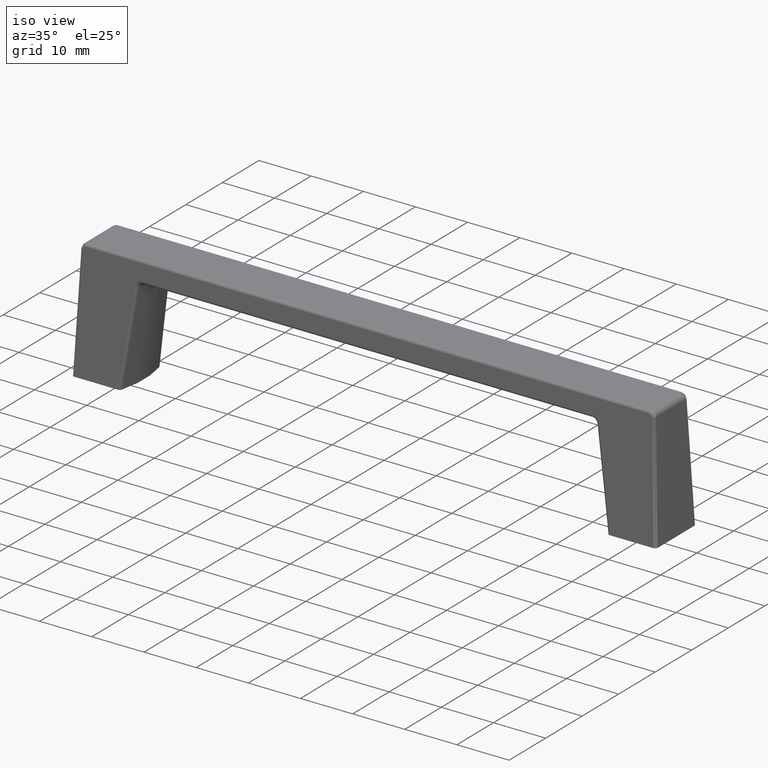
[diagram: clean part render]
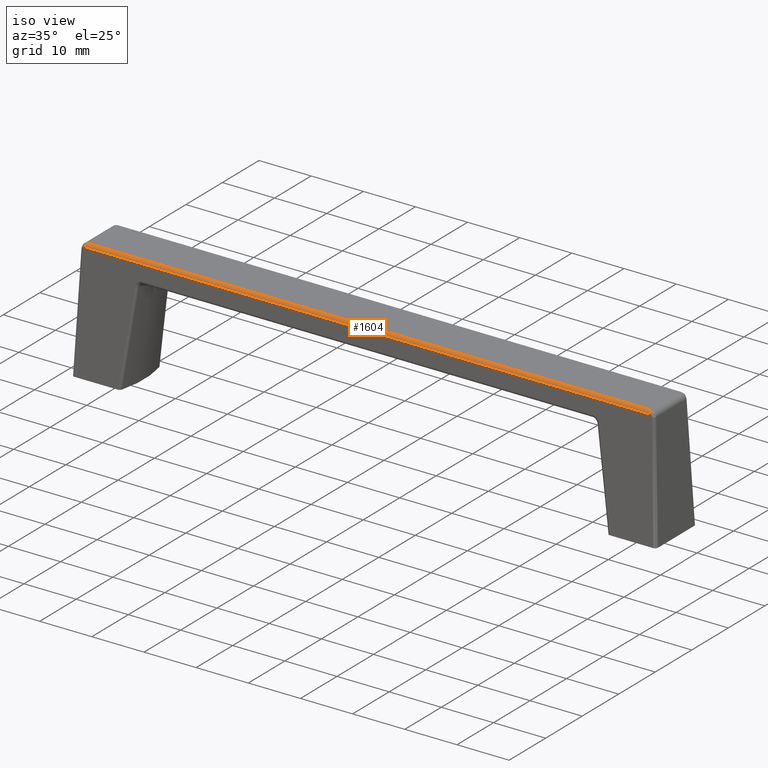
[diagram: same view with one face highlighted and labeled with its STEP entity id]
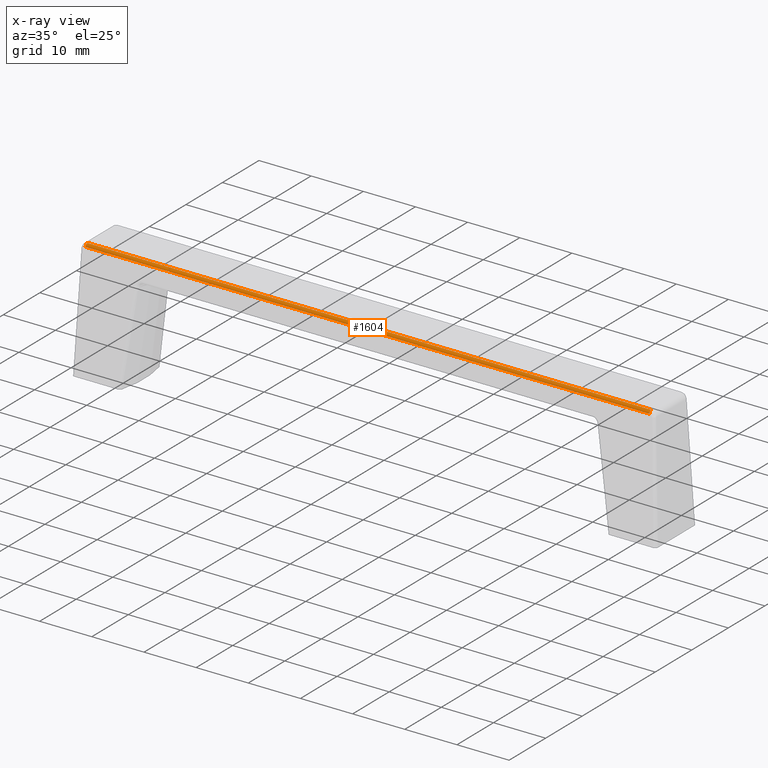
[diagram: x-ray of the same camera — body ghosted, the highlighted face saturated]
A machine part, iso view. The second image highlights one B-rep face of the part: STEP entity #1604.
The next image is the same camera in x-ray: the body ghosted, the highlighted face saturated — about 0% of this face is hidden behind the body in this view.
In plain terms, the highlighted face is a freeform B-spline surface patch.
Its self-contained STEP definition (entity closure, byte-faithful):
#1513=CARTESIAN_POINT('',(54.042724839746100,-4.021440682764665,23.000299999999999));
#1514=VERTEX_POINT('',#1513);
#1515=CARTESIAN_POINT('',(54.042724839746100,-4.520968941878050,22.522014473217350));
#1516=VERTEX_POINT('',#1515);
#1517=CARTESIAN_POINT('',(54.042724839746100,-4.021440682764620,23.000299999999999));
#1518=CARTESIAN_POINT('',(54.042724839746107,-4.500177889375836,23.000300000000010));
#1519=CARTESIAN_POINT('',(54.042724839746100,-4.520968941878050,22.522014473217350));
#1527=(BOUNDED_CURVE()B_SPLINE_CURVE(2,(#1517,#1518,#1519),.UNSPECIFIED.,.F.,.U.)CURVE()GEOMETRIC_REPRESENTATION_ITEM()QUASI_UNIFORM_CURVE()RATIONAL_B_SPLINE_CURVE((1.0,0.722298050127055,1.0))REPRESENTATION_ITEM(''));
#1528=EDGE_CURVE('',#1514,#1516,#1527,.T.);
#1560=CARTESIAN_POINT('',(-56.744861081733418,-4.521421644296706,22.504663267749141));
#1561=CARTESIAN_POINT('',(56.812414487783109,-4.521421644296706,22.504663267749141));
#1562=CARTESIAN_POINT('',(-56.744861081733404,-4.516788333935495,23.035588047676363));
#1563=CARTESIAN_POINT('',(56.812414487783094,-4.516788333935495,23.035588047676363));
#1564=CARTESIAN_POINT('',(-56.744861081733418,-3.987097284335235,22.999119136545815));
#1565=CARTESIAN_POINT('',(56.812414487783109,-3.987097284335235,22.999119136545815));
#1573=(BOUNDED_SURFACE()B_SPLINE_SURFACE(1,2,((#1560,#1562,#1564),(#1561,#1563,#1565)),.UNSPECIFIED.,.F.,.F.,.U.)B_SPLINE_SURFACE_WITH_KNOTS((2,2),(3,3),(0.0,113.557275569516610),(0.0,0.993315038509853),.UNSPECIFIED.)GEOMETRIC_REPRESENTATION_ITEM()RATIONAL_B_SPLINE_SURFACE(((1.0,0.684124188779284,0.995776764732641),(1.0,0.684124188779284,0.995776764732641)))REPRESENTATION_ITEM('')SURFACE());
#1574=CARTESIAN_POINT('',(-54.042724839746100,-4.021440682764665,23.000299999999999));
#1575=VERTEX_POINT('',#1574);
#1576=CARTESIAN_POINT('',(-54.042724839746100,-4.520968941878050,22.522014473217350));
#1577=VERTEX_POINT('',#1576);
#1578=CARTESIAN_POINT('',(-54.042724839746100,-4.021440682764620,23.000299999999999));
#1579=CARTESIAN_POINT('',(-54.042724839746107,-4.500177889375836,23.000300000000010));
#1580=CARTESIAN_POINT('',(-54.042724839746100,-4.520968941878050,22.522014473217350));
#1588=(BOUNDED_CURVE()B_SPLINE_CURVE(2,(#1578,#1579,#1580),.UNSPECIFIED.,.F.,.U.)CURVE()GEOMETRIC_REPRESENTATION_ITEM()QUASI_UNIFORM_CURVE()RATIONAL_B_SPLINE_CURVE((1.0,0.722298050127055,1.0))REPRESENTATION_ITEM(''));
#1589=EDGE_CURVE('',#1575,#1577,#1588,.T.);
#1590=ORIENTED_EDGE('',*,*,#1589,.T.);
#1591=CARTESIAN_POINT('',(54.042724839746100,-4.520968941878050,22.522014473217350));
#1592=CARTESIAN_POINT('',(-54.042724839746100,-4.520968941878050,22.522014473217350));
#1593=QUASI_UNIFORM_CURVE('',1,(#1591,#1592),.UNSPECIFIED.,.F.,.U.);
#1594=EDGE_CURVE('',#1516,#1577,#1593,.T.);
#1595=ORIENTED_EDGE('',*,*,#1594,.F.);
#1596=ORIENTED_EDGE('',*,*,#1528,.F.);
#1597=CARTESIAN_POINT('',(-54.042724839746100,-4.021440682764665,23.000299999999999));
#1598=CARTESIAN_POINT('',(54.042724839746100,-4.021440682764665,23.000299999999999));
#1599=QUASI_UNIFORM_CURVE('',1,(#1597,#1598),.UNSPECIFIED.,.F.,.U.);
#1600=EDGE_CURVE('',#1575,#1514,#1599,.T.);
#1601=ORIENTED_EDGE('',*,*,#1600,.F.);
#1602=EDGE_LOOP('',(#1590,#1595,#1596,#1601));
#1603=FACE_OUTER_BOUND('',#1602,.T.);
#1604=ADVANCED_FACE('',(#1603),#1573,.T.);